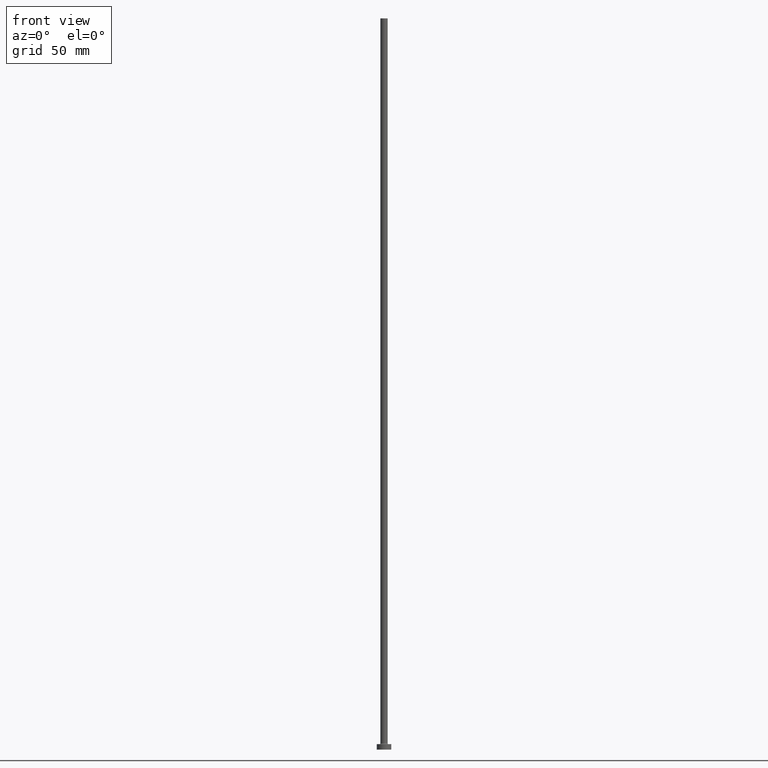
[diagram: clean part render]
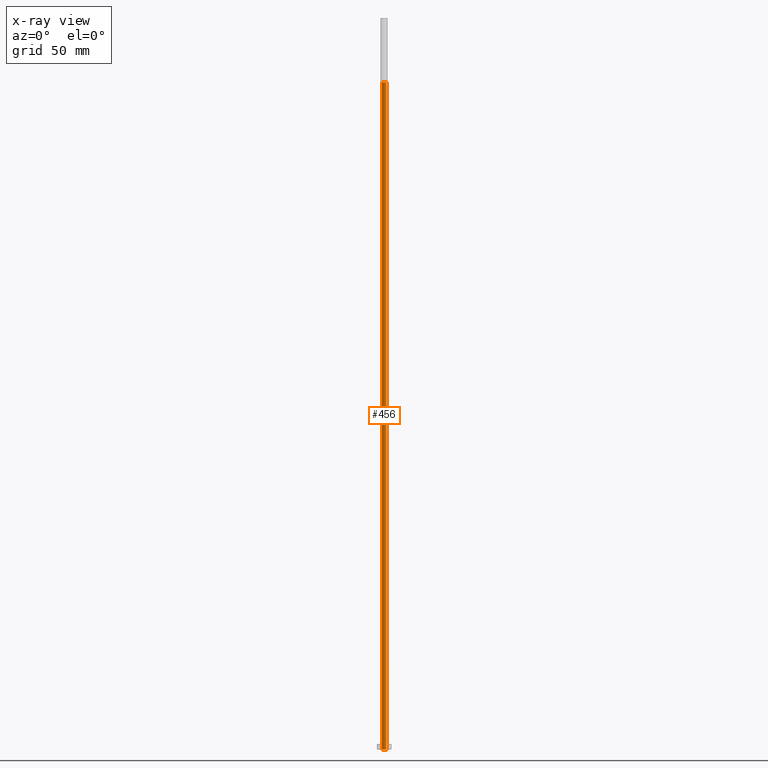
[diagram: x-ray — body ghosted, one internal face saturated and labeled with its STEP entity id]
A machine part, front view, then the same camera in x-ray: the body is ghosted and one INTERNAL B-rep face — a face not visible from any outside direction — is saturated and labeled: STEP entity #456.
In plain terms, the highlighted cylindrical surface (edge-blend (fillet) strip) has radius 1.25 mm, axis along (0, 0, -1).
Its self-contained STEP definition (entity closure, byte-faithful):
#4 = DIRECTION ( 'NONE',  ( -1.000000000000000000, 0.000000000000000000, 0.000000000000000000 ) ) ;
#18 = VERTEX_POINT ( 'NONE', #38 ) ;
#22 = ORIENTED_EDGE ( 'NONE', *, *, #149, .T. ) ;
#37 = DIRECTION ( 'NONE',  ( 0.000000000000000000, 0.000000000000000000, -1.000000000000000000 ) ) ;
#38 = CARTESIAN_POINT ( 'NONE',  ( -1.250000000000000000, 0.000000000000000000, 365.0000000000000000 ) ) ;
#71 = CIRCLE ( 'NONE', #237, 1.250000000000000000 ) ;
#82 = DIRECTION ( 'NONE',  ( 0.000000000000000000, 0.000000000000000000, -1.000000000000000000 ) ) ;
#99 = EDGE_LOOP ( 'NONE', ( #164, #137, #22, #348 ) ) ;
#108 = VERTEX_POINT ( 'NONE', #435 ) ;
#115 = DIRECTION ( 'NONE',  ( 0.000000000000000000, 0.000000000000000000, 1.000000000000000000 ) ) ;
#121 = DIRECTION ( 'NONE',  ( 1.000000000000000000, 0.000000000000000000, 0.000000000000000000 ) ) ;
#135 = VECTOR ( 'NONE', #37, 1000.000000000000000 ) ;
#137 = ORIENTED_EDGE ( 'NONE', *, *, #328, .T. ) ;
#143 = DIRECTION ( 'NONE',  ( 1.000000000000000000, 0.000000000000000000, 0.000000000000000000 ) ) ;
#149 = EDGE_CURVE ( 'NONE', #108, #301, #368, .T. ) ;
#164 = ORIENTED_EDGE ( 'NONE', *, *, #379, .T. ) ;
#177 = VECTOR ( 'NONE', #82, 1000.000000000000000 ) ;
#186 = AXIS2_PLACEMENT_3D ( 'NONE', #321, #256, #4 ) ;
#190 = LINE ( 'NONE', #282, #135 ) ;
#198 = CARTESIAN_POINT ( 'NONE',  ( 0.000000000000000000, 0.000000000000000000, 0.000000000000000000 ) ) ;
#219 = CYLINDRICAL_SURFACE ( 'NONE', #186, 1.250000000000000000 ) ;
#237 = AXIS2_PLACEMENT_3D ( 'NONE', #391, #115, #143 ) ;
#249 = CARTESIAN_POINT ( 'NONE',  ( 1.250000000000000000, 1.530808498934191571E-16, 365.0000000000000000 ) ) ;
#256 = DIRECTION ( 'NONE',  ( 0.000000000000000000, 0.000000000000000000, -1.000000000000000000 ) ) ;
#282 = CARTESIAN_POINT ( 'NONE',  ( -1.250000000000000000, 0.000000000000000000, 368.5355339059327662 ) ) ;
#301 = VERTEX_POINT ( 'NONE', #341 ) ;
#307 = LINE ( 'NONE', #437, #177 ) ;
#321 = CARTESIAN_POINT ( 'NONE',  ( 0.000000000000000000, 0.000000000000000000, 368.5355339059327662 ) ) ;
#328 = EDGE_CURVE ( 'NONE', #449, #108, #307, .T. ) ;
#335 = DIRECTION ( 'NONE',  ( -0.000000000000000000, -0.000000000000000000, -1.000000000000000000 ) ) ;
#341 = CARTESIAN_POINT ( 'NONE',  ( -1.250000000000000000, 0.000000000000000000, 0.000000000000000000 ) ) ;
#348 = ORIENTED_EDGE ( 'NONE', *, *, #393, .F. ) ;
#368 = CIRCLE ( 'NONE', #423, 1.250000000000000000 ) ;
#379 = EDGE_CURVE ( 'NONE', #18, #449, #71, .T. ) ;
#391 = CARTESIAN_POINT ( 'NONE',  ( 0.000000000000000000, 0.000000000000000000, 365.0000000000000000 ) ) ;
#393 = EDGE_CURVE ( 'NONE', #18, #301, #190, .T. ) ;
#395 = FACE_OUTER_BOUND ( 'NONE', #99, .T. ) ;
#423 = AXIS2_PLACEMENT_3D ( 'NONE', #198, #335, #121 ) ;
#435 = CARTESIAN_POINT ( 'NONE',  ( 1.250000000000000000, 1.530808498934191571E-16, 0.000000000000000000 ) ) ;
#437 = CARTESIAN_POINT ( 'NONE',  ( 1.250000000000000000, 1.530808498934191571E-16, 368.5355339059327662 ) ) ;
#449 = VERTEX_POINT ( 'NONE', #249 ) ;
#456 = ADVANCED_FACE ( 'NONE', ( #395 ), #219, .F. ) ;